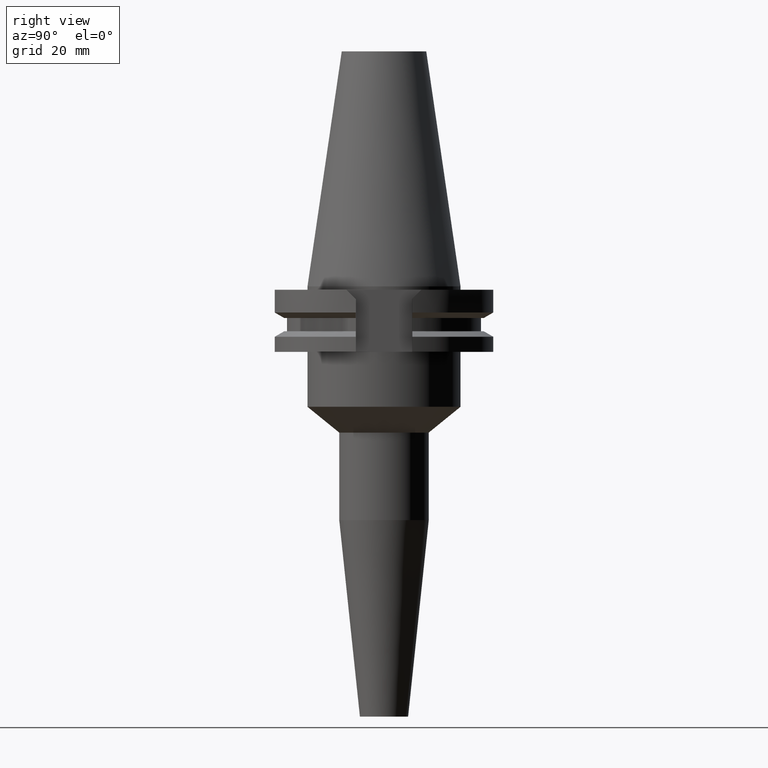
[diagram: clean part render]
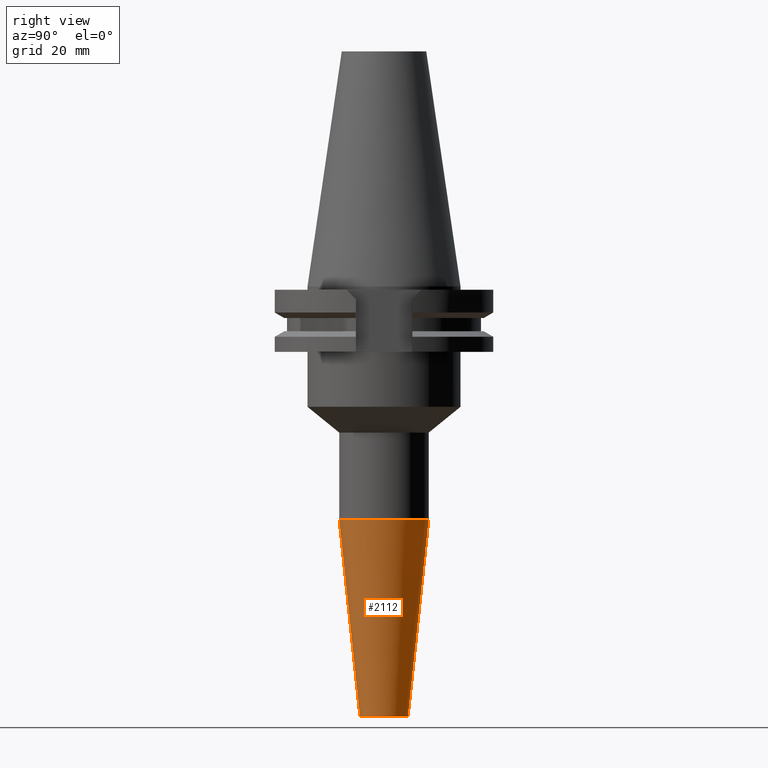
[diagram: same view with one face highlighted and labeled with its STEP entity id]
A machine part, right view. The second image highlights one B-rep face of the part: STEP entity #2112.
In plain terms, the highlighted conical surface has half-angle 6 deg.
Its self-contained STEP definition (entity closure, byte-faithful):
#922=DIRECTION('',(0.E0,-1.045284632677E-1,-9.945218953683E-1));
#923=VECTOR('',#922,5.740063340104E1);
#924=CARTESIAN_POINT('',(0.E0,1.3E1,-6.791381327466E1));
#925=LINE('',#924,#923);
#929=CARTESIAN_POINT('',(0.E0,0.E0,-6.791381327466E1));
#930=DIRECTION('',(0.E0,0.E0,1.E0));
#931=DIRECTION('',(0.E0,-1.E0,0.E0));
#932=AXIS2_PLACEMENT_3D('',#929,#930,#931);
#945=DIRECTION('',(0.E0,1.045284632676E-1,-9.945218953683E-1));
#946=VECTOR('',#945,5.740063340104E1);
#947=CARTESIAN_POINT('',(0.E0,-1.3E1,-6.791381327466E1));
#948=LINE('',#947,#946);
#952=CARTESIAN_POINT('',(0.E0,0.E0,-1.25E2));
#953=DIRECTION('',(0.E0,0.E0,1.E0));
#954=DIRECTION('',(0.E0,-1.E0,0.E0));
#955=AXIS2_PLACEMENT_3D('',#952,#953,#954);
#1260=CARTESIAN_POINT('',(0.E0,-7.E0,-1.25E2));
#1261=CARTESIAN_POINT('',(0.E0,7.E0,-1.25E2));
#1262=VERTEX_POINT('',#1260);
#1263=VERTEX_POINT('',#1261);
#1264=CARTESIAN_POINT('',(0.E0,1.3E1,-6.791381327466E1));
#1265=VERTEX_POINT('',#1264);
#1266=CARTESIAN_POINT('',(0.E0,-1.3E1,-6.791381327466E1));
#1267=VERTEX_POINT('',#1266);
#2098=CARTESIAN_POINT('',(0.E0,0.E0,-9.645690663733E1));
#2099=DIRECTION('',(0.E0,0.E0,1.E0));
#2100=DIRECTION('',(0.E0,1.E0,0.E0));
#2101=AXIS2_PLACEMENT_3D('',#2098,#2099,#2100);
#2102=CONICAL_SURFACE('',#2101,1.E1,6.E0);
#2104=ORIENTED_EDGE('',*,*,#2103,.T.);
#2106=ORIENTED_EDGE('',*,*,#2105,.F.);
#2108=ORIENTED_EDGE('',*,*,#2107,.F.);
#2109=ORIENTED_EDGE('',*,*,#2091,.T.);
#2110=EDGE_LOOP('',(#2104,#2106,#2108,#2109));
#2111=FACE_OUTER_BOUND('',#2110,.F.);
#933=CIRCLE('',#932,1.3E1);
#956=CIRCLE('',#955,7.E0);
#2091=EDGE_CURVE('',#1267,#1265,#933,.T.);
#2103=EDGE_CURVE('',#1265,#1263,#925,.T.);
#2105=EDGE_CURVE('',#1262,#1263,#956,.T.);
#2107=EDGE_CURVE('',#1267,#1262,#948,.T.);
#2112=ADVANCED_FACE('',(#2111),#2102,.T.);